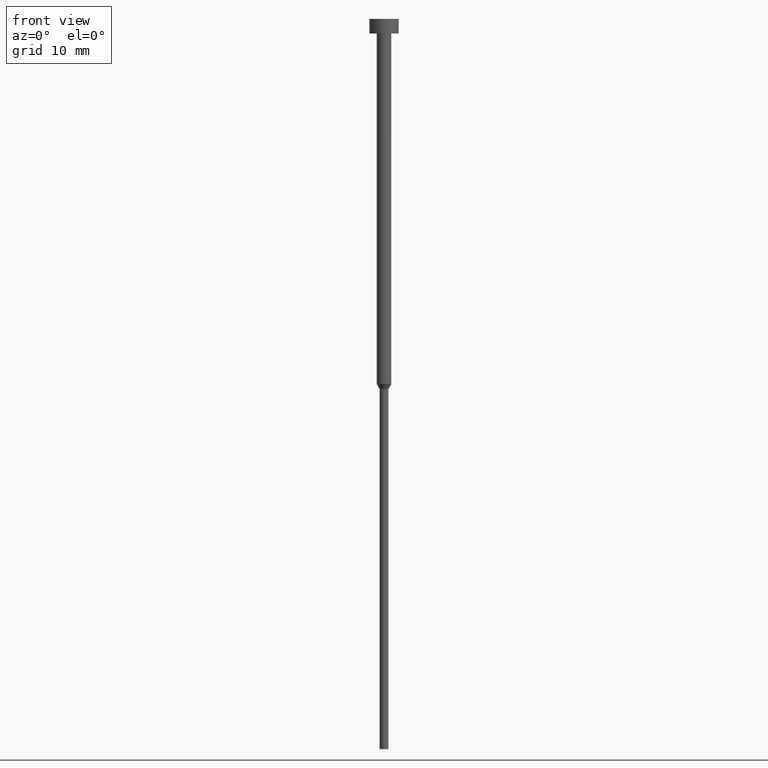
[diagram: clean part render]
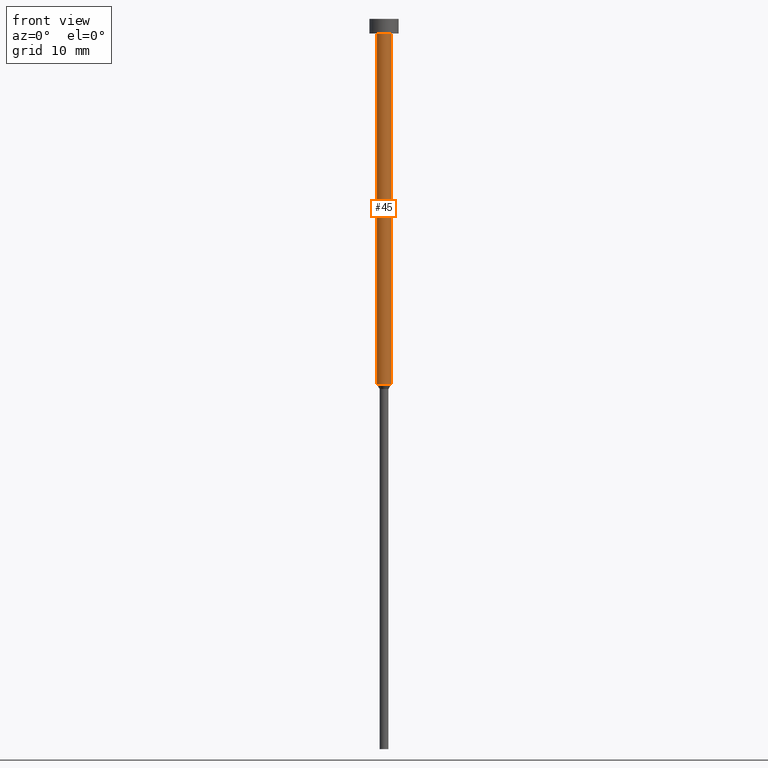
[diagram: same view with one face highlighted and labeled with its STEP entity id]
A machine part, front view. The second image highlights one B-rep face of the part: STEP entity #45.
In plain terms, the highlighted cylindrical surface (edge-blend (fillet) strip) has radius 1 mm, axis along (-0, -0, 1).
Its self-contained STEP definition (entity closure, byte-faithful):
#7 = CARTESIAN_POINT ( 'NONE',  ( 1.000000000000003109, 0.000000000000000000, -50.00000000000000000 ) ) ;
#14 = EDGE_LOOP ( 'NONE', ( #227, #141, #71, #41 ) ) ;
#41 = ORIENTED_EDGE ( 'NONE', *, *, #155, .F. ) ;
#45 = ADVANCED_FACE ( 'NONE', ( #355 ), #269, .T. ) ;
#51 = CIRCLE ( 'NONE', #64, 1.000000000000003109 ) ;
#64 = AXIS2_PLACEMENT_3D ( 'NONE', #104, #328, #309 ) ;
#66 = CIRCLE ( 'NONE', #271, 1.000000000000003553 ) ;
#71 = ORIENTED_EDGE ( 'NONE', *, *, #107, .T. ) ;
#91 = DIRECTION ( 'NONE',  ( -0.000000000000000000, -0.000000000000000000, 1.000000000000000000 ) ) ;
#101 = VERTEX_POINT ( 'NONE', #7 ) ;
#104 = CARTESIAN_POINT ( 'NONE',  ( 0.000000000000000000, 0.000000000000000000, -50.00000000000000000 ) ) ;
#107 = EDGE_CURVE ( 'NONE', #101, #244, #292, .T. ) ;
#108 = CARTESIAN_POINT ( 'NONE',  ( 0.000000000000000000, 0.000000000000000000, 0.000000000000000000 ) ) ;
#119 = CARTESIAN_POINT ( 'NONE',  ( -1.000000000000003553, 1.224646799147357398E-16, -2.000000000000000444 ) ) ;
#141 = ORIENTED_EDGE ( 'NONE', *, *, #268, .T. ) ;
#142 = CARTESIAN_POINT ( 'NONE',  ( 1.000000000000003331, 0.000000000000000000, 0.000000000000000000 ) ) ;
#155 = EDGE_CURVE ( 'NONE', #171, #244, #66, .T. ) ;
#171 = VERTEX_POINT ( 'NONE', #119 ) ;
#177 = DIRECTION ( 'NONE',  ( 1.000000000000000000, 0.000000000000000000, 0.000000000000000000 ) ) ;
#189 = EDGE_CURVE ( 'NONE', #201, #171, #257, .T. ) ;
#200 = VECTOR ( 'NONE', #91, 1000.000000000000000 ) ;
#201 = VERTEX_POINT ( 'NONE', #349 ) ;
#211 = VECTOR ( 'NONE', #225, 1000.000000000000000 ) ;
#219 = DIRECTION ( 'NONE',  ( -0.000000000000000000, -0.000000000000000000, 1.000000000000000000 ) ) ;
#222 = CARTESIAN_POINT ( 'NONE',  ( 1.000000000000003553, 0.000000000000000000, -2.000000000000000444 ) ) ;
#225 = DIRECTION ( 'NONE',  ( -0.000000000000000000, -0.000000000000000000, 1.000000000000000000 ) ) ;
#227 = ORIENTED_EDGE ( 'NONE', *, *, #189, .F. ) ;
#244 = VERTEX_POINT ( 'NONE', #222 ) ;
#257 = LINE ( 'NONE', #342, #200 ) ;
#268 = EDGE_CURVE ( 'NONE', #201, #101, #51, .T. ) ;
#269 = CYLINDRICAL_SURFACE ( 'NONE', #334, 1.000000000000003331 ) ;
#271 = AXIS2_PLACEMENT_3D ( 'NONE', #293, #219, #296 ) ;
#292 = LINE ( 'NONE', #142, #211 ) ;
#293 = CARTESIAN_POINT ( 'NONE',  ( 0.000000000000000000, 0.000000000000000000, -2.000000000000000444 ) ) ;
#296 = DIRECTION ( 'NONE',  ( 1.000000000000000000, 0.000000000000000000, 0.000000000000000000 ) ) ;
#309 = DIRECTION ( 'NONE',  ( 1.000000000000000000, 0.000000000000000000, 0.000000000000000000 ) ) ;
#326 = DIRECTION ( 'NONE',  ( -0.000000000000000000, -0.000000000000000000, 1.000000000000000000 ) ) ;
#328 = DIRECTION ( 'NONE',  ( -0.000000000000000000, -0.000000000000000000, 1.000000000000000000 ) ) ;
#334 = AXIS2_PLACEMENT_3D ( 'NONE', #108, #326, #177 ) ;
#342 = CARTESIAN_POINT ( 'NONE',  ( -1.000000000000003331, 1.224646799147357151E-16, 0.000000000000000000 ) ) ;
#349 = CARTESIAN_POINT ( 'NONE',  ( -1.000000000000003109, 1.224646799147356905E-16, -50.00000000000000000 ) ) ;
#355 = FACE_OUTER_BOUND ( 'NONE', #14, .T. ) ;